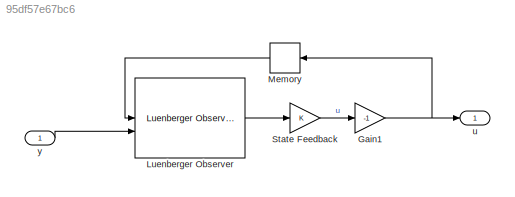
MODEL slx_95df57e67bc6
KIND model
CONFIG AbsTol = auto
CONFIG EnableMultiTasking = off
CONFIG FixedStep = 0.001
CONFIG MaxStep = auto
CONFIG MinStep = auto
CONFIG RelTol = 1e-3
CONFIG SampleTimeConstraint = Unconstrained
CONFIG SolverName = FixedStepAuto
CONFIG StartTime = 0.0
CONFIG StopTime = 100.0
BLOCK [Gain] Gain1
  Gain = -1
BLOCK [Reference] Luenberger Observer  REF=eeLuenbergerObserver/Luenberger Observer
  LibrarySourceBlock = ee_sl_lib/Observers/Luenberger Observer
  SourceBlock = eeLuenbergerObserver/Luenberger Observer
  SourceType = Luenberger Observer
BLOCK [Memory] Memory
  NameLocation = top
BLOCK [Gain] State Feedback
  Gain = K
  Multiplication = Matrix(K*u)
BLOCK [Outport] u
  NameLocation = top
  OutDataTypeStr = double
  PortDimensions = 1
  SampleTime = [0.001,0]
  SamplingMode = Sample based
  SignalType = real
BLOCK [Inport] y
  OutDataTypeStr = double
  PortDimensions = [2 1]
  SampleTime = 0
  SamplingMode = Sample based
  SignalType = real
NET Gain1:1 -> Memory:1, u:1
LINE Luenberger Observer:1 -> State Feedback:1
LINE Memory:1 -> Luenberger Observer:1
LINE State Feedback:1 -> Gain1:1
LINE y:1 -> Luenberger Observer:2
note: NET lines group one-source signal fan-out (src -> all destinations, sorted); 1:1 wires keep LINE
